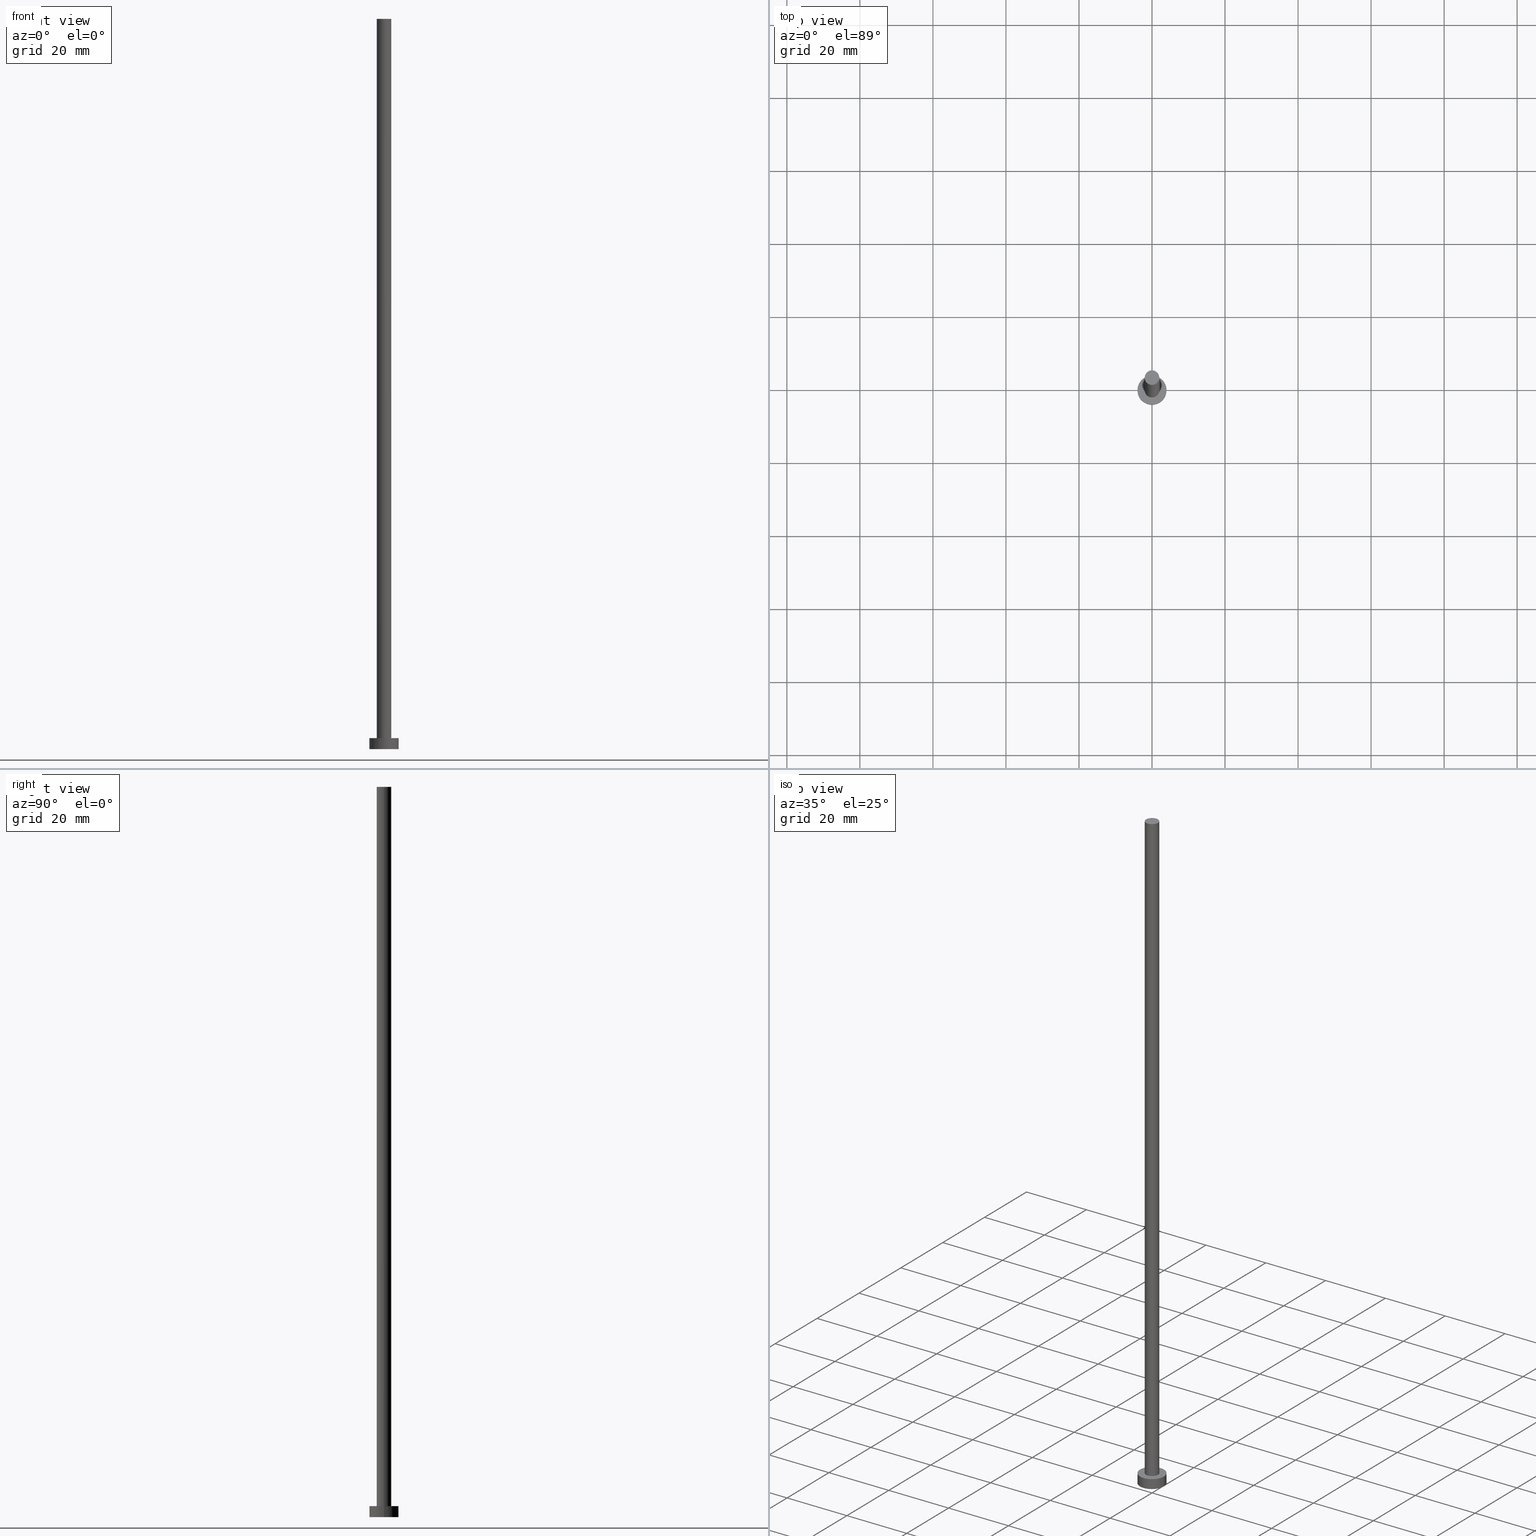
[diagram: canonical four-view strip — front | top / right | iso, engineering-drawing reading convention]
A machine part, canonical four-view strip (front | top / right | iso — engineering-drawing reading convention). The complete STEP part file that produces these views, byte-faithful:
ISO-10303-21;
HEADER;
FILE_DESCRIPTION (( 'STEP AP203' ),
    '1' );
FILE_NAME ('986f.STEP',
    '2023-02-13T16:10:15',
    ( '' ),
    ( '' ),
    'SwSTEP 2.0',
    'SolidWorks 2019',
    '' );
FILE_SCHEMA (( 'CONFIG_CONTROL_DESIGN' ));
ENDSEC;

DATA;
#1 = CARTESIAN_POINT ( 'NONE',  ( 0.000000000000000000, 0.000000000000000000, 200.0000000000000000 ) ) ;
#2 = CALENDAR_DATE ( 2023, 13, 2 ) ;
#3 = AXIS2_PLACEMENT_3D ( 'NONE', #174, #225, #93 ) ;
#4 = FACE_BOUND ( 'NONE', #18, .T. ) ;
#5 = DIRECTION ( 'NONE',  ( -0.000000000000000000, -0.000000000000000000, -1.000000000000000000 ) ) ;
#6 = EDGE_CURVE ( 'NONE', #76, #144, #66, .T. ) ;
#7 = CLOSED_SHELL ( 'NONE', ( #21, #180, #129, #98, #45, #191, #243 ) ) ;
#8 = DATE_AND_TIME ( #30, #23 ) ;
#9 = DIRECTION ( 'NONE',  ( 1.000000000000000000, 0.000000000000000000, -0.000000000000000000 ) ) ;
#10 = PERSON_AND_ORGANIZATION ( #124, #223 ) ;
#11 = CYLINDRICAL_SURFACE ( 'NONE', #52, 2.000000000000000000 ) ;
#12 = SHAPE_DEFINITION_REPRESENTATION ( #80, #134 ) ;
#13 = DIRECTION ( 'NONE',  ( 0.000000000000000000, 0.000000000000000000, 1.000000000000000000 ) ) ;
#14 = DIRECTION ( 'NONE',  ( -0.000000000000000000, -0.000000000000000000, -1.000000000000000000 ) ) ;
#15 = LOCAL_TIME ( 17, 10, 15.00000000000000000, #211 ) ;
#16 = EDGE_CURVE ( 'NONE', #213, #244, #233, .T. ) ;
#17 = DIRECTION ( 'NONE',  ( -0.000000000000000000, -0.000000000000000000, -1.000000000000000000 ) ) ;
#18 = EDGE_LOOP ( 'NONE', ( #35, #183 ) ) ;
#19 = AXIS2_PLACEMENT_3D ( 'NONE', #107, #82, #56 ) ;
#20 = CC_DESIGN_APPROVAL ( #77, ( #42 ) ) ;
#21 = ADVANCED_FACE ( 'NONE', ( #29 ), #11, .T. ) ;
#22 =( NAMED_UNIT ( * ) SI_UNIT ( $, .STERADIAN. ) SOLID_ANGLE_UNIT ( ) );
#23 = LOCAL_TIME ( 17, 10, 15.00000000000000000, #67 ) ;
#24 = COORDINATED_UNIVERSAL_TIME_OFFSET ( 1, 0, .AHEAD. ) ;
#25 = DIRECTION ( 'NONE',  ( 0.000000000000000000, 0.000000000000000000, 1.000000000000000000 ) ) ;
#26 = APPROVAL_STATUS ( 'not_yet_approved' ) ;
#27 = CC_DESIGN_DATE_AND_TIME_ASSIGNMENT ( #121, #199, ( #73 ) ) ;
#28 = CALENDAR_DATE ( 2023, 13, 2 ) ;
#29 = FACE_OUTER_BOUND ( 'NONE', #147, .T. ) ;
#30 = CALENDAR_DATE ( 2023, 13, 2 ) ;
#31 = CARTESIAN_POINT ( 'NONE',  ( 0.000000000000000000, 0.000000000000000000, 3.000000000000000000 ) ) ;
#32 = VECTOR ( 'NONE', #5, 1000.000000000000000 ) ;
#33 = CALENDAR_DATE ( 2023, 13, 2 ) ;
#34 = FACE_OUTER_BOUND ( 'NONE', #238, .T. ) ;
#35 = ORIENTED_EDGE ( 'NONE', *, *, #126, .F. ) ;
#36 = EDGE_CURVE ( 'NONE', #153, #144, #151, .T. ) ;
#37 = CYLINDRICAL_SURFACE ( 'NONE', #239, 2.000000000000000000 ) ;
#38 = DIRECTION ( 'NONE',  ( -0.000000000000000000, -0.000000000000000000, -1.000000000000000000 ) ) ;
#39 =( NAMED_UNIT ( * ) PLANE_ANGLE_UNIT ( ) SI_UNIT ( $, .RADIAN. ) );
#40 = AXIS2_PLACEMENT_3D ( 'NONE', #138, #216, #230 ) ;
#41 = CARTESIAN_POINT ( 'NONE',  ( 2.000000000000000000, 2.449293598294706414E-16, 200.0000000000000000 ) ) ;
#42 = PRODUCT_DEFINITION ( 'NEZN�M�', '', #181, #160 ) ;
#43 = PLANE ( 'NONE',  #201 ) ;
#44 = EDGE_LOOP ( 'NONE', ( #140, #254, #249, #105 ) ) ;
#45 = ADVANCED_FACE ( 'NONE', ( #241 ), #207, .F. ) ;
#46 = PLANE ( 'NONE',  #110 ) ;
#47 = PERSON_AND_ORGANIZATION ( #124, #223 ) ;
#48 = CC_DESIGN_SECURITY_CLASSIFICATION ( #73, ( #181 ) ) ;
#49 = DIRECTION ( 'NONE',  ( 1.000000000000000000, 0.000000000000000000, 0.000000000000000000 ) ) ;
#50 = ORIENTED_EDGE ( 'NONE', *, *, #109, .F. ) ;
#51 = CC_DESIGN_PERSON_AND_ORGANIZATION_ASSIGNMENT ( #10, #250, ( #73 ) ) ;
#52 = AXIS2_PLACEMENT_3D ( 'NONE', #114, #65, #169 ) ;
#53 = DIRECTION ( 'NONE',  ( 1.000000000000000000, 0.000000000000000000, 0.000000000000000000 ) ) ;
#54 = ORIENTED_EDGE ( 'NONE', *, *, #215, .F. ) ;
#55 = EDGE_LOOP ( 'NONE', ( #158, #177, #95, #54 ) ) ;
#56 = DIRECTION ( 'NONE',  ( 1.000000000000000000, 0.000000000000000000, 0.000000000000000000 ) ) ;
#57 = CIRCLE ( 'NONE', #106, 4.000000000000000000 ) ;
#58 = CARTESIAN_POINT ( 'NONE',  ( 2.000000000000000000, 2.449293598294706414E-16, 200.0000000000000000 ) ) ;
#59 = APPROVAL_PERSON_ORGANIZATION ( #131, #234, #87 ) ;
#60 = DIRECTION ( 'NONE',  ( 1.000000000000000000, 0.000000000000000000, -0.000000000000000000 ) ) ;
#61 = AXIS2_PLACEMENT_3D ( 'NONE', #122, #38, #162 ) ;
#62 = ORIENTED_EDGE ( 'NONE', *, *, #64, .T. ) ;
#63 = CIRCLE ( 'NONE', #253, 2.000000000000000000 ) ;
#64 = EDGE_CURVE ( 'NONE', #97, #154, #156, .T. ) ;
#65 = DIRECTION ( 'NONE',  ( -0.000000000000000000, -0.000000000000000000, -1.000000000000000000 ) ) ;
#66 = CIRCLE ( 'NONE', #175, 2.000000000000000000 ) ;
#67 = COORDINATED_UNIVERSAL_TIME_OFFSET ( 1, 0, .AHEAD. ) ;
#68 = DIRECTION ( 'NONE',  ( 1.000000000000000000, 0.000000000000000000, 0.000000000000000000 ) ) ;
#69 = EDGE_CURVE ( 'NONE', #219, #153, #117, .T. ) ;
#70 = LINE ( 'NONE', #228, #127 ) ;
#71 = COORDINATED_UNIVERSAL_TIME_OFFSET ( 1, 0, .AHEAD. ) ;
#72 = CARTESIAN_POINT ( 'NONE',  ( 4.000000000000000000, 4.898587196589412829E-16, 3.000000000000000000 ) ) ;
#73 = SECURITY_CLASSIFICATION ( '', '', #102 ) ;
#74 = CC_DESIGN_PERSON_AND_ORGANIZATION_ASSIGNMENT ( #113, #192, ( #125 ) ) ;
#75 = PERSON_AND_ORGANIZATION_ROLE ( 'design_supplier' ) ;
#76 = VERTEX_POINT ( 'NONE', #190 ) ;
#77 = APPROVAL ( #173, 'NEUR�EN�' ) ;
#78 =( LENGTH_UNIT ( ) NAMED_UNIT ( * ) SI_UNIT ( .MILLI., .METRE. ) );
#79 = ORIENTED_EDGE ( 'NONE', *, *, #6, .T. ) ;
#80 = PRODUCT_DEFINITION_SHAPE ( 'NONE', 'NONE',  #42 ) ;
#81 = ORIENTED_EDGE ( 'NONE', *, *, #64, .F. ) ;
#82 = DIRECTION ( 'NONE',  ( 0.000000000000000000, 0.000000000000000000, 1.000000000000000000 ) ) ;
#83 = LINE ( 'NONE', #143, #136 ) ;
#84 = DIRECTION ( 'NONE',  ( 0.000000000000000000, 0.000000000000000000, 1.000000000000000000 ) ) ;
#85 = PERSON_AND_ORGANIZATION ( #124, #223 ) ;
#86 = DIRECTION ( 'NONE',  ( 1.000000000000000000, 0.000000000000000000, 0.000000000000000000 ) ) ;
#87 = APPROVAL_ROLE ( '' ) ;
#88 = DIRECTION ( 'NONE',  ( 1.000000000000000000, 0.000000000000000000, 0.000000000000000000 ) ) ;
#89 = APPROVAL_ROLE ( '' ) ;
#90 = DIRECTION ( 'NONE',  ( 1.000000000000000000, 0.000000000000000000, 0.000000000000000000 ) ) ;
#91 = ORIENTED_EDGE ( 'NONE', *, *, #172, .T. ) ;
#92 = APPLICATION_PROTOCOL_DEFINITION ( 'international standard', 'config_control_design', 1994, #168 ) ;
#93 = DIRECTION ( 'NONE',  ( 1.000000000000000000, 0.000000000000000000, -0.000000000000000000 ) ) ;
#94 = CC_DESIGN_APPROVAL ( #234, ( #181 ) ) ;
#95 = ORIENTED_EDGE ( 'NONE', *, *, #152, .T. ) ;
#96 = FACE_OUTER_BOUND ( 'NONE', #55, .T. ) ;
#97 = VERTEX_POINT ( 'NONE', #227 ) ;
#98 = ADVANCED_FACE ( 'NONE', ( #4, #135 ), #46, .T. ) ;
#99 = PERSON_AND_ORGANIZATION ( #124, #223 ) ;
#100 = CYLINDRICAL_SURFACE ( 'NONE', #165, 4.000000000000000000 ) ;
#101 = ORIENTED_EDGE ( 'NONE', *, *, #152, .F. ) ;
#102 = SECURITY_CLASSIFICATION_LEVEL ( 'unclassified' ) ;
#103 = DIRECTION ( 'NONE',  ( -1.000000000000000000, 0.000000000000000000, 0.000000000000000000 ) ) ;
#104 = CIRCLE ( 'NONE', #40, 2.000000000000000000 ) ;
#105 = ORIENTED_EDGE ( 'NONE', *, *, #126, .T. ) ;
#106 = AXIS2_PLACEMENT_3D ( 'NONE', #247, #221, #251 ) ;
#107 = CARTESIAN_POINT ( 'NONE',  ( 0.000000000000000000, 0.000000000000000000, 0.000000000000000000 ) ) ;
#108 = LINE ( 'NONE', #41, #226 ) ;
#109 = EDGE_CURVE ( 'NONE', #154, #244, #70, .T. ) ;
#110 = AXIS2_PLACEMENT_3D ( 'NONE', #31, #116, #9 ) ;
#111 = AXIS2_PLACEMENT_3D ( 'NONE', #206, #176, #86 ) ;
#112 = EDGE_LOOP ( 'NONE', ( #62, #203 ) ) ;
#113 = PERSON_AND_ORGANIZATION ( #124, #223 ) ;
#114 = CARTESIAN_POINT ( 'NONE',  ( 0.000000000000000000, 0.000000000000000000, 200.0000000000000000 ) ) ;
#115 = APPROVAL_DATE_TIME ( #193, #77 ) ;
#116 = DIRECTION ( 'NONE',  ( 0.000000000000000000, 0.000000000000000000, 1.000000000000000000 ) ) ;
#117 = CIRCLE ( 'NONE', #217, 2.000000000000000000 ) ;
#118 = CARTESIAN_POINT ( 'NONE',  ( 0.000000000000000000, 0.000000000000000000, 0.000000000000000000 ) ) ;
#119 = APPROVAL_ROLE ( '' ) ;
#120 = CARTESIAN_POINT ( 'NONE',  ( -2.000000000000000000, 0.000000000000000000, 200.0000000000000000 ) ) ;
#121 = DATE_AND_TIME ( #33, #198 ) ;
#122 = CARTESIAN_POINT ( 'NONE',  ( 0.000000000000000000, 0.000000000000000000, 3.000000000000000000 ) ) ;
#123 = CYLINDRICAL_SURFACE ( 'NONE', #61, 4.000000000000000000 ) ;
#124 = PERSON ( 'NEUR�EN�', 'NEUR�EN�', 'NEUR�EN�', ('NEUR�EN�'), ('NEUR�EN�'), ('NEUR�EN�') ) ;
#125 = PRODUCT ( '986f', '986f', '', ( #189 ) ) ;
#126 = EDGE_CURVE ( 'NONE', #144, #76, #104, .T. ) ;
#127 = VECTOR ( 'NONE', #142, 1000.000000000000000 ) ;
#128 = CARTESIAN_POINT ( 'NONE',  ( 4.000000000000000000, 4.898587196589412829E-16, 0.000000000000000000 ) ) ;
#129 = ADVANCED_FACE ( 'NONE', ( #34 ), #123, .T. ) ;
#130 = ORIENTED_EDGE ( 'NONE', *, *, #36, .F. ) ;
#131 = PERSON_AND_ORGANIZATION ( #124, #223 ) ;
#132 = DIRECTION ( 'NONE',  ( 0.000000000000000000, 0.000000000000000000, 1.000000000000000000 ) ) ;
#133 = CARTESIAN_POINT ( 'NONE',  ( -2.000000000000000000, 0.000000000000000000, 200.0000000000000000 ) ) ;
#134 = ADVANCED_BREP_SHAPE_REPRESENTATION ( '986f', ( #224, #19 ), #208 ) ;
#135 = FACE_OUTER_BOUND ( 'NONE', #112, .T. ) ;
#136 = VECTOR ( 'NONE', #166, 1000.000000000000000 ) ;
#137 = ORIENTED_EDGE ( 'NONE', *, *, #16, .F. ) ;
#138 = CARTESIAN_POINT ( 'NONE',  ( 0.000000000000000000, 0.000000000000000000, 3.000000000000000000 ) ) ;
#139 = CARTESIAN_POINT ( 'NONE',  ( 0.000000000000000000, 0.000000000000000000, 3.000000000000000000 ) ) ;
#140 = ORIENTED_EDGE ( 'NONE', *, *, #255, .F. ) ;
#141 = LOCAL_TIME ( 17, 10, 15.00000000000000000, #24 ) ;
#142 = DIRECTION ( 'NONE',  ( -0.000000000000000000, -0.000000000000000000, -1.000000000000000000 ) ) ;
#143 = CARTESIAN_POINT ( 'NONE',  ( -4.000000000000000000, 0.000000000000000000, 3.000000000000000000 ) ) ;
#144 = VERTEX_POINT ( 'NONE', #185 ) ;
#145 = AXIS2_PLACEMENT_3D ( 'NONE', #245, #13, #49 ) ;
#146 = CC_DESIGN_DATE_AND_TIME_ASSIGNMENT ( #195, #149, ( #42 ) ) ;
#147 = EDGE_LOOP ( 'NONE', ( #164, #231, #79, #130 ) ) ;
#148 = CC_DESIGN_APPROVAL ( #237, ( #73 ) ) ;
#149 = DATE_TIME_ROLE ( 'creation_date' ) ;
#150 = ORIENTED_EDGE ( 'NONE', *, *, #16, .T. ) ;
#151 = LINE ( 'NONE', #133, #32 ) ;
#152 = EDGE_CURVE ( 'NONE', #244, #213, #196, .T. ) ;
#153 = VERTEX_POINT ( 'NONE', #120 ) ;
#154 = VERTEX_POINT ( 'NONE', #72 ) ;
#155 = CC_DESIGN_PERSON_AND_ORGANIZATION_ASSIGNMENT ( #99, #214, ( #181 ) ) ;
#156 = CIRCLE ( 'NONE', #111, 4.000000000000000000 ) ;
#157 = FACE_OUTER_BOUND ( 'NONE', #44, .T. ) ;
#158 = ORIENTED_EDGE ( 'NONE', *, *, #187, .F. ) ;
#159 = APPROVAL_PERSON_ORGANIZATION ( #47, #237, #119 ) ;
#160 = DESIGN_CONTEXT ( 'detailed design', #168, 'design' ) ;
#161 = CALENDAR_DATE ( 2023, 13, 2 ) ;
#162 = DIRECTION ( 'NONE',  ( -1.000000000000000000, 0.000000000000000000, 0.000000000000000000 ) ) ;
#163 = COORDINATED_UNIVERSAL_TIME_OFFSET ( 1, 0, .AHEAD. ) ;
#164 = ORIENTED_EDGE ( 'NONE', *, *, #69, .F. ) ;
#165 = AXIS2_PLACEMENT_3D ( 'NONE', #139, #14, #184 ) ;
#166 = DIRECTION ( 'NONE',  ( -0.000000000000000000, -0.000000000000000000, -1.000000000000000000 ) ) ;
#167 = LOCAL_TIME ( 17, 10, 15.00000000000000000, #71 ) ;
#168 = APPLICATION_CONTEXT ( 'configuration controlled 3d designs of mechanical parts and assemblies' ) ;
#169 = DIRECTION ( 'NONE',  ( -1.000000000000000000, 0.000000000000000000, 0.000000000000000000 ) ) ;
#170 = PERSON_AND_ORGANIZATION_ROLE ( 'creator' ) ;
#171 = CARTESIAN_POINT ( 'NONE',  ( 0.000000000000000000, 0.000000000000000000, 3.000000000000000000 ) ) ;
#172 = EDGE_CURVE ( 'NONE', #153, #219, #63, .T. ) ;
#173 = APPROVAL_STATUS ( 'not_yet_approved' ) ;
#174 = CARTESIAN_POINT ( 'NONE',  ( 0.000000000000000000, 0.000000000000000000, 0.000000000000000000 ) ) ;
#175 = AXIS2_PLACEMENT_3D ( 'NONE', #171, #194, #90 ) ;
#176 = DIRECTION ( 'NONE',  ( 0.000000000000000000, 0.000000000000000000, 1.000000000000000000 ) ) ;
#177 = ORIENTED_EDGE ( 'NONE', *, *, #109, .T. ) ;
#178 = UNCERTAINTY_MEASURE_WITH_UNIT (LENGTH_MEASURE( 1.000000000000000082E-05 ), #78, 'distance_accuracy_value', 'NONE');
#179 = APPROVAL_DATE_TIME ( #8, #234 ) ;
#180 = ADVANCED_FACE ( 'NONE', ( #96 ), #100, .T. ) ;
#181 = PRODUCT_DEFINITION_FORMATION_WITH_SPECIFIED_SOURCE ( 'LIBOVOLN�', '', #125, .NOT_KNOWN. ) ;
#182 = ORIENTED_EDGE ( 'NONE', *, *, #215, .T. ) ;
#183 = ORIENTED_EDGE ( 'NONE', *, *, #6, .F. ) ;
#184 = DIRECTION ( 'NONE',  ( -1.000000000000000000, 0.000000000000000000, 0.000000000000000000 ) ) ;
#185 = CARTESIAN_POINT ( 'NONE',  ( -2.000000000000000000, 0.000000000000000000, 3.000000000000000000 ) ) ;
#186 = APPROVAL_STATUS ( 'not_yet_approved' ) ;
#187 = EDGE_CURVE ( 'NONE', #154, #97, #57, .T. ) ;
#188 = EDGE_LOOP ( 'NONE', ( #91, #210 ) ) ;
#189 = MECHANICAL_CONTEXT ( 'NONE', #209, 'mechanical' ) ;
#190 = CARTESIAN_POINT ( 'NONE',  ( 2.000000000000000000, 2.449293598294706414E-16, 3.000000000000000000 ) ) ;
#191 = ADVANCED_FACE ( 'NONE', ( #157 ), #37, .T. ) ;
#192 = PERSON_AND_ORGANIZATION_ROLE ( 'design_owner' ) ;
#193 = DATE_AND_TIME ( #28, #15 ) ;
#194 = DIRECTION ( 'NONE',  ( 0.000000000000000000, 0.000000000000000000, 1.000000000000000000 ) ) ;
#195 = DATE_AND_TIME ( #2, #141 ) ;
#196 = CIRCLE ( 'NONE', #145, 4.000000000000000000 ) ;
#197 = PERSON_AND_ORGANIZATION ( #124, #223 ) ;
#198 = LOCAL_TIME ( 17, 10, 15.00000000000000000, #163 ) ;
#199 = DATE_TIME_ROLE ( 'classification_date' ) ;
#200 = DIRECTION ( 'NONE',  ( 0.000000000000000000, 0.000000000000000000, 1.000000000000000000 ) ) ;
#201 = AXIS2_PLACEMENT_3D ( 'NONE', #1, #84, #60 ) ;
#202 = CARTESIAN_POINT ( 'NONE',  ( 0.000000000000000000, 0.000000000000000000, 200.0000000000000000 ) ) ;
#203 = ORIENTED_EDGE ( 'NONE', *, *, #187, .T. ) ;
#204 = APPLICATION_PROTOCOL_DEFINITION ( 'international standard', 'config_control_design', 1994, #209 ) ;
#205 = PERSON_AND_ORGANIZATION ( #124, #223 ) ;
#206 = CARTESIAN_POINT ( 'NONE',  ( 0.000000000000000000, 0.000000000000000000, 3.000000000000000000 ) ) ;
#207 = PLANE ( 'NONE',  #3 ) ;
#208 =( GEOMETRIC_REPRESENTATION_CONTEXT ( 3 ) GLOBAL_UNCERTAINTY_ASSIGNED_CONTEXT ( ( #178 ) ) GLOBAL_UNIT_ASSIGNED_CONTEXT ( ( #78, #39, #22 ) ) REPRESENTATION_CONTEXT ( 'NONE', 'WORKASPACE' ) );
#209 = APPLICATION_CONTEXT ( 'configuration controlled 3d designs of mechanical parts and assemblies' ) ;
#210 = ORIENTED_EDGE ( 'NONE', *, *, #69, .T. ) ;
#211 = COORDINATED_UNIVERSAL_TIME_OFFSET ( 1, 0, .AHEAD. ) ;
#212 = EDGE_LOOP ( 'NONE', ( #137, #101 ) ) ;
#213 = VERTEX_POINT ( 'NONE', #236 ) ;
#214 = PERSON_AND_ORGANIZATION_ROLE ( 'creator' ) ;
#215 = EDGE_CURVE ( 'NONE', #97, #213, #83, .T. ) ;
#216 = DIRECTION ( 'NONE',  ( 0.000000000000000000, 0.000000000000000000, 1.000000000000000000 ) ) ;
#217 = AXIS2_PLACEMENT_3D ( 'NONE', #242, #25, #68 ) ;
#218 = AXIS2_PLACEMENT_3D ( 'NONE', #118, #132, #88 ) ;
#219 = VERTEX_POINT ( 'NONE', #58 ) ;
#220 = DATE_AND_TIME ( #161, #167 ) ;
#221 = DIRECTION ( 'NONE',  ( 0.000000000000000000, 0.000000000000000000, 1.000000000000000000 ) ) ;
#222 = CC_DESIGN_PERSON_AND_ORGANIZATION_ASSIGNMENT ( #197, #75, ( #181 ) ) ;
#223 = ORGANIZATION ( 'NEUR�EN�', 'NEUR�EN�', '' ) ;
#224 = MANIFOLD_SOLID_BREP ( 'P�idat vysunut�m3', #7 ) ;
#225 = DIRECTION ( 'NONE',  ( 0.000000000000000000, 0.000000000000000000, 1.000000000000000000 ) ) ;
#226 = VECTOR ( 'NONE', #235, 1000.000000000000000 ) ;
#227 = CARTESIAN_POINT ( 'NONE',  ( -4.000000000000000000, 0.000000000000000000, 3.000000000000000000 ) ) ;
#228 = CARTESIAN_POINT ( 'NONE',  ( 4.000000000000000000, 4.898587196589412829E-16, 3.000000000000000000 ) ) ;
#229 = APPROVAL_DATE_TIME ( #220, #237 ) ;
#230 = DIRECTION ( 'NONE',  ( 1.000000000000000000, 0.000000000000000000, 0.000000000000000000 ) ) ;
#231 = ORIENTED_EDGE ( 'NONE', *, *, #255, .T. ) ;
#232 = CARTESIAN_POINT ( 'NONE',  ( 0.000000000000000000, 0.000000000000000000, 200.0000000000000000 ) ) ;
#233 = CIRCLE ( 'NONE', #218, 4.000000000000000000 ) ;
#234 = APPROVAL ( #26, 'NEUR�EN�' ) ;
#235 = DIRECTION ( 'NONE',  ( -0.000000000000000000, -0.000000000000000000, -1.000000000000000000 ) ) ;
#236 = CARTESIAN_POINT ( 'NONE',  ( -4.000000000000000000, 0.000000000000000000, 0.000000000000000000 ) ) ;
#237 = APPROVAL ( #186, 'NEUR�EN�' ) ;
#238 = EDGE_LOOP ( 'NONE', ( #50, #81, #182, #150 ) ) ;
#239 = AXIS2_PLACEMENT_3D ( 'NONE', #202, #17, #103 ) ;
#240 = APPROVAL_PERSON_ORGANIZATION ( #205, #77, #89 ) ;
#241 = FACE_OUTER_BOUND ( 'NONE', #212, .T. ) ;
#242 = CARTESIAN_POINT ( 'NONE',  ( 0.000000000000000000, 0.000000000000000000, 200.0000000000000000 ) ) ;
#243 = ADVANCED_FACE ( 'NONE', ( #252 ), #43, .T. ) ;
#244 = VERTEX_POINT ( 'NONE', #128 ) ;
#245 = CARTESIAN_POINT ( 'NONE',  ( 0.000000000000000000, 0.000000000000000000, 0.000000000000000000 ) ) ;
#246 = CC_DESIGN_PERSON_AND_ORGANIZATION_ASSIGNMENT ( #85, #170, ( #42 ) ) ;
#247 = CARTESIAN_POINT ( 'NONE',  ( 0.000000000000000000, 0.000000000000000000, 3.000000000000000000 ) ) ;
#248 = PRODUCT_RELATED_PRODUCT_CATEGORY ( 'detail', '', ( #125 ) ) ;
#249 = ORIENTED_EDGE ( 'NONE', *, *, #36, .T. ) ;
#250 = PERSON_AND_ORGANIZATION_ROLE ( 'classification_officer' ) ;
#251 = DIRECTION ( 'NONE',  ( 1.000000000000000000, 0.000000000000000000, 0.000000000000000000 ) ) ;
#252 = FACE_OUTER_BOUND ( 'NONE', #188, .T. ) ;
#253 = AXIS2_PLACEMENT_3D ( 'NONE', #232, #200, #53 ) ;
#254 = ORIENTED_EDGE ( 'NONE', *, *, #172, .F. ) ;
#255 = EDGE_CURVE ( 'NONE', #219, #76, #108, .T. ) ;
ENDSEC;
END-ISO-10303-21;
